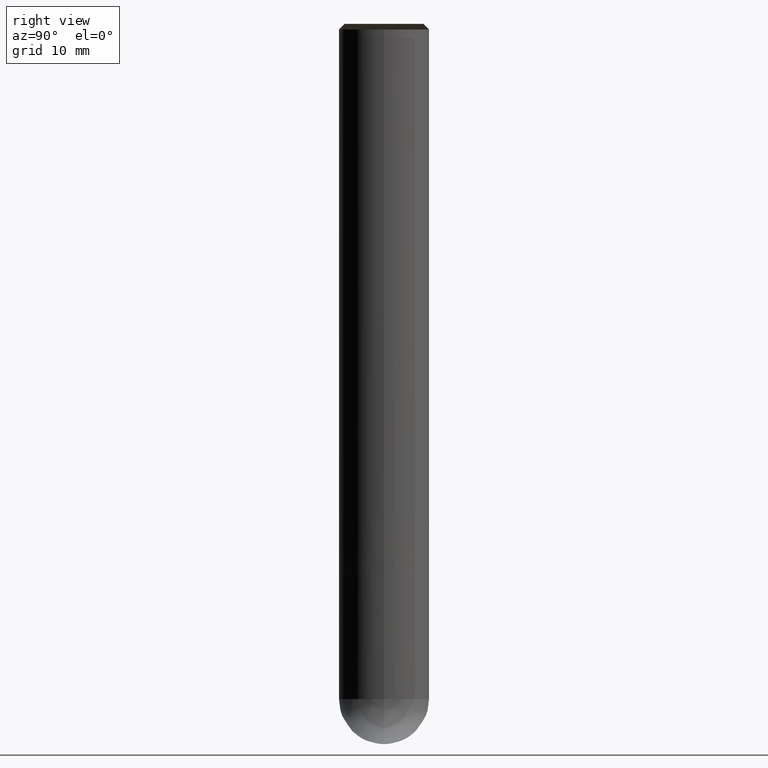
[diagram: clean part render]
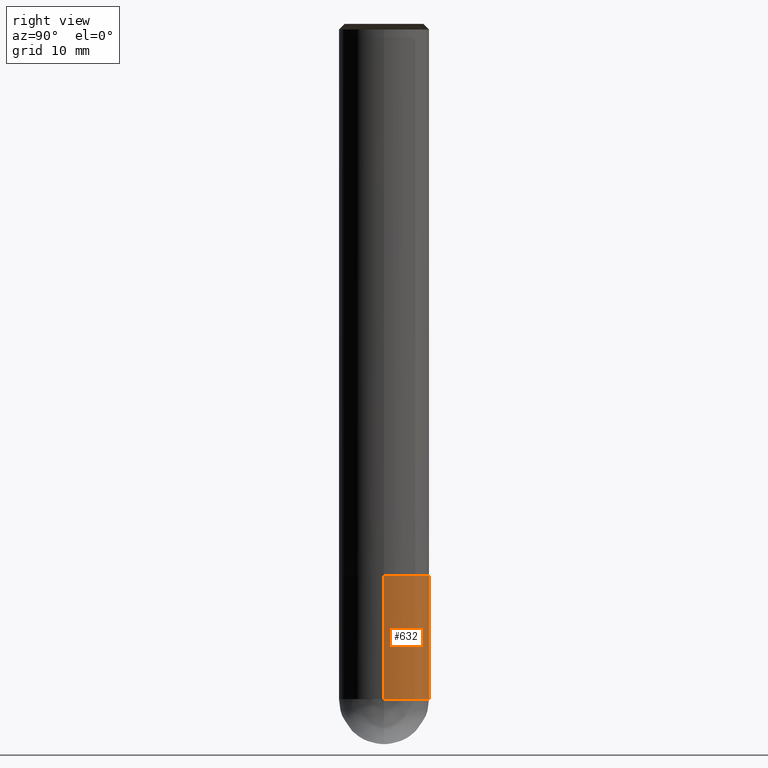
[diagram: same view with one face highlighted and labeled with its STEP entity id]
A machine part, right view. The second image highlights one B-rep face of the part: STEP entity #632.
In plain terms, the highlighted face is a freeform B-spline surface patch.
Its self-contained STEP definition (entity closure, byte-faithful):
#546=CARTESIAN_POINT('',(4.0,0.0,-16.0));
#547=CARTESIAN_POINT('',(4.0,4.0,-16.0));
#548=CARTESIAN_POINT('',(0.0,4.0,-16.0));
#549=CARTESIAN_POINT('',(-4.0,4.0,-16.0));
#550=CARTESIAN_POINT('',(-4.0,0.0,-16.0));
#551=CARTESIAN_POINT('',(4.0,0.0,-5.0));
#552=CARTESIAN_POINT('',(4.0,4.0,-5.0));
#553=CARTESIAN_POINT('',(0.0,4.0,-5.0));
#554=CARTESIAN_POINT('',(-4.0,4.0,-5.0));
#555=CARTESIAN_POINT('',(-4.0,0.0,-5.0));
#613=(
BOUNDED_SURFACE()
B_SPLINE_SURFACE(1,2,(
(#546,#547,#548,#549,#550),
(#551,#552,#553,#554,#555)
), .UNSPECIFIED.,.F.,.F.,.F.)
B_SPLINE_SURFACE_WITH_KNOTS((2,2),(3,2,3),(
0.0,1.0),(
0.0,0.5,1.0), .UNSPECIFIED.)
GEOMETRIC_REPRESENTATION_ITEM()
RATIONAL_B_SPLINE_SURFACE(((1.0,0.707106781187,1.0,0.707106781187,1.0),
(1.0,0.707106781187,1.0,0.707106781187,1.0)
))
REPRESENTATION_ITEM('')
SURFACE()
);
#614=(
BOUNDED_CURVE()
B_SPLINE_CURVE(2,(#551,#552,#553,#554,#555),.UNSPECIFIED.,.F.,.F.)
B_SPLINE_CURVE_WITH_KNOTS((3,2,3),
(0.0,0.5,1.0),.UNSPECIFIED.)
CURVE()
GEOMETRIC_REPRESENTATION_ITEM()
RATIONAL_B_SPLINE_CURVE((1.0,0.707106781187,1.0,0.707106781187,1.0))
REPRESENTATION_ITEM('')
);
#615=(
BOUNDED_CURVE()
B_SPLINE_CURVE(1,(#555,#550),.UNSPECIFIED.,.F.,.F.)
B_SPLINE_CURVE_WITH_KNOTS((2,2),
(0.0,1.0),.UNSPECIFIED.)
CURVE()
GEOMETRIC_REPRESENTATION_ITEM()
RATIONAL_B_SPLINE_CURVE((1.0,1.0))
REPRESENTATION_ITEM('')
);
#616=(
BOUNDED_CURVE()
B_SPLINE_CURVE(2,(#550,#549,#548,#547,#546),.UNSPECIFIED.,.F.,.F.)
B_SPLINE_CURVE_WITH_KNOTS((3,2,3),
(0.0,0.5,1.0),.UNSPECIFIED.)
CURVE()
GEOMETRIC_REPRESENTATION_ITEM()
RATIONAL_B_SPLINE_CURVE((1.0,0.707106781187,1.0,0.707106781187,1.0))
REPRESENTATION_ITEM('')
);
#617=(
BOUNDED_CURVE()
B_SPLINE_CURVE(1,(#546,#551),.UNSPECIFIED.,.F.,.F.)
B_SPLINE_CURVE_WITH_KNOTS((2,2),
(0.0,1.0),.UNSPECIFIED.)
CURVE()
GEOMETRIC_REPRESENTATION_ITEM()
RATIONAL_B_SPLINE_CURVE((1.0,1.0))
REPRESENTATION_ITEM('')
);
#618=VERTEX_POINT('',#546);
#619=VERTEX_POINT('',#550);
#620=VERTEX_POINT('',#551);
#621=VERTEX_POINT('',#555);
#622=EDGE_CURVE('',#620,#621,#614,.T.);
#623=EDGE_CURVE('',#621,#619,#615,.T.);
#624=EDGE_CURVE('',#619,#618,#616,.T.);
#625=EDGE_CURVE('',#618,#620,#617,.T.);
#626=ORIENTED_EDGE('',*,*,#622,.T.);
#627=ORIENTED_EDGE('',*,*,#623,.T.);
#628=ORIENTED_EDGE('',*,*,#624,.T.);
#629=ORIENTED_EDGE('',*,*,#625,.T.);
#630=EDGE_LOOP('',(#626,#627,#628,#629));
#631=FACE_OUTER_BOUND('',#630,.T.);
#632=ADVANCED_FACE('',(#631),#613,.T.);